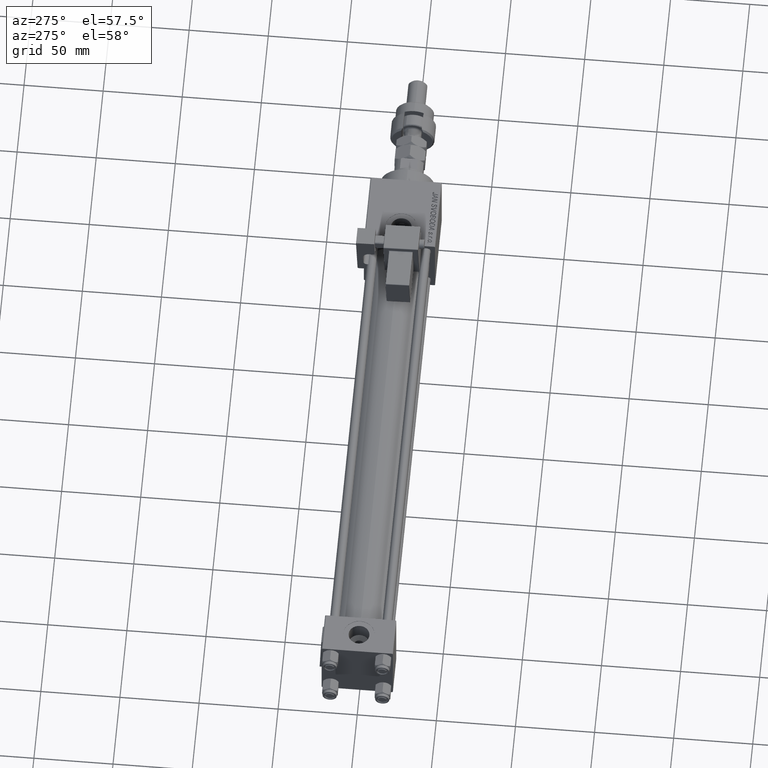
[diagram: clean part render]
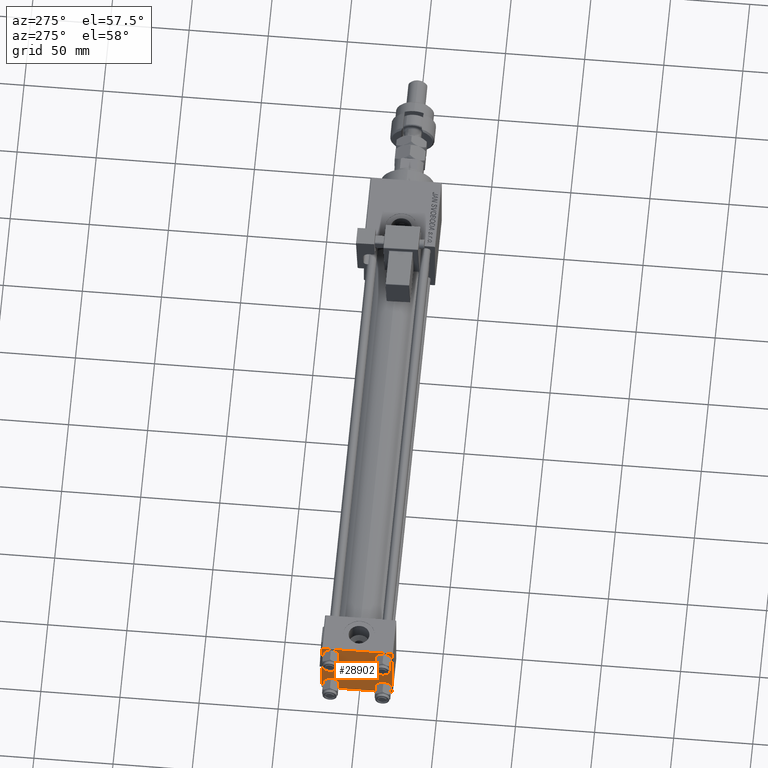
[diagram: same view with one face highlighted and labeled with its STEP entity id]
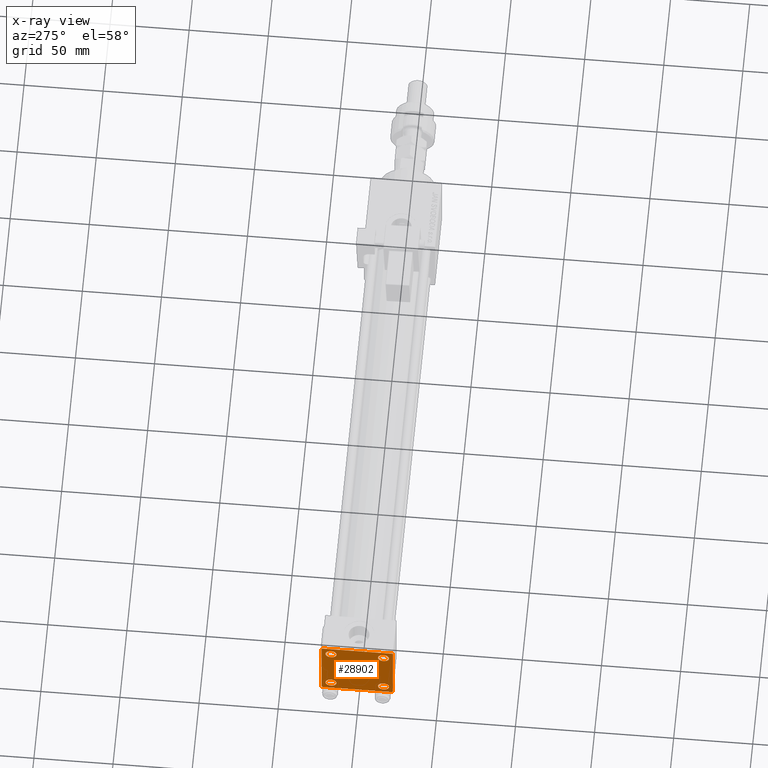
[diagram: x-ray of the same camera — body ghosted, the highlighted face saturated]
A machine part, auxiliary view. The second image highlights one B-rep face of the part: STEP entity #28902.
The next image is the same camera in x-ray: the body ghosted, the highlighted face saturated — about 0% of this face is hidden behind the body in this view.
In plain terms, the highlighted planar face has unit normal (-1, 0, 0).
Its self-contained STEP definition (entity closure, byte-faithful):
#661 = FACE_BOUND ( 'NONE', #5920, .T. ) ;
#960 = LINE ( 'NONE', #7245, #2127 ) ;
#2075 = VERTEX_POINT ( 'NONE', #18110 ) ;
#2127 = VECTOR ( 'NONE', #15679, 1000.000000000000114 ) ;
#2228 = EDGE_CURVE ( 'NONE', #36828, #42151, #960, .T. ) ;
#2404 = VERTEX_POINT ( 'NONE', #9248 ) ;
#2411 = LINE ( 'NONE', #37254, #27388 ) ;
#2545 = VECTOR ( 'NONE', #33610, 1000.000000000000000 ) ;
#2815 = VERTEX_POINT ( 'NONE', #21316 ) ;
#3095 = CARTESIAN_POINT ( 'NONE',  ( 0.000000000000000000, 22.25000000000014566, -22.24999999999984013 ) ) ;
#3123 = CARTESIAN_POINT ( 'NONE',  ( 0.000000000000000000, 22.50000000000000000, -22.49999999999999645 ) ) ;
#3498 = ORIENTED_EDGE ( 'NONE', *, *, #25501, .F. ) ;
#3872 = EDGE_CURVE ( 'NONE', #6333, #32556, #2411, .T. ) ;
#4617 = CIRCLE ( 'NONE', #17583, 3.499999999999996003 ) ;
#4856 = VERTEX_POINT ( 'NONE', #38120 ) ;
#5420 = EDGE_LOOP ( 'NONE', ( #15939, #20552 ) ) ;
#5920 = EDGE_LOOP ( 'NONE', ( #41941, #24996 ) ) ;
#6136 = DIRECTION ( 'NONE',  ( 0.000000000000000000, 0.000000000000000000, 1.000000000000000000 ) ) ;
#6333 = VERTEX_POINT ( 'NONE', #47660 ) ;
#6480 = VERTEX_POINT ( 'NONE', #43578 ) ;
#6580 = EDGE_LOOP ( 'NONE', ( #31332, #52851, #38014, #39703, #50849, #29797, #3498, #40917 ) ) ;
#7210 = VERTEX_POINT ( 'NONE', #10306 ) ;
#7245 = CARTESIAN_POINT ( 'NONE',  ( 0.000000000000000000, 22.24999999999999645, 22.24999999999999645 ) ) ;
#8524 = CARTESIAN_POINT ( 'NONE',  ( 0.000000000000000000, 16.59999999999999787, -20.10000000000000142 ) ) ;
#9188 = EDGE_CURVE ( 'NONE', #2075, #21569, #46127, .T. ) ;
#9248 = CARTESIAN_POINT ( 'NONE',  ( 0.000000000000000000, 21.99999999999999289, -22.49999999999999645 ) ) ;
#9793 = ORIENTED_EDGE ( 'NONE', *, *, #55710, .T. ) ;
#10306 = CARTESIAN_POINT ( 'NONE',  ( 0.000000000000000000, -16.59999999999999076, 20.10000000000000853 ) ) ;
#11042 = DIRECTION ( 'NONE',  ( 0.000000000000000000, 0.000000000000000000, 1.000000000000000000 ) ) ;
#11073 = AXIS2_PLACEMENT_3D ( 'NONE', #21551, #26485, #13121 ) ;
#11108 = CIRCLE ( 'NONE', #11073, 3.499999999999996003 ) ;
#11241 = DIRECTION ( 'NONE',  ( 0.000000000000000000, 0.000000000000000000, 1.000000000000000000 ) ) ;
#11612 = DIRECTION ( 'NONE',  ( 1.000000000000000000, -0.000000000000000000, 0.000000000000000000 ) ) ;
#12105 = LINE ( 'NONE', #3123, #2545 ) ;
#12339 = ORIENTED_EDGE ( 'NONE', *, *, #47516, .T. ) ;
#13027 = VECTOR ( 'NONE', #46523, 1000.000000000000000 ) ;
#13121 = DIRECTION ( 'NONE',  ( 0.000000000000000000, 0.000000000000000000, 1.000000000000000000 ) ) ;
#14945 = AXIS2_PLACEMENT_3D ( 'NONE', #54894, #29034, #41238 ) ;
#15519 = CARTESIAN_POINT ( 'NONE',  ( 0.000000000000000000, 16.59999999999999787, 20.10000000000000142 ) ) ;
#15665 = EDGE_CURVE ( 'NONE', #55095, #56339, #43467, .T. ) ;
#15679 = DIRECTION ( 'NONE',  ( 0.000000000000000000, 0.7071067811865474617, -0.7071067811865474617 ) ) ;
#15939 = ORIENTED_EDGE ( 'NONE', *, *, #46864, .T. ) ;
#16000 = CARTESIAN_POINT ( 'NONE',  ( 0.000000000000000000, 16.59999999999999787, 16.60000000000000497 ) ) ;
#17297 = LINE ( 'NONE', #3095, #26554 ) ;
#17583 = AXIS2_PLACEMENT_3D ( 'NONE', #20050, #11612, #11042 ) ;
#17747 = AXIS2_PLACEMENT_3D ( 'NONE', #16000, #46779, #6136 ) ;
#18110 = CARTESIAN_POINT ( 'NONE',  ( 0.000000000000000000, -16.59999999999999076, -13.10000000000001030 ) ) ;
#18171 = CARTESIAN_POINT ( 'NONE',  ( 0.000000000000000000, 22.50000000000000000, 22.50000000000000355 ) ) ;
#18197 = CARTESIAN_POINT ( 'NONE',  ( 0.000000000000000000, -16.59999999999999076, -20.10000000000000497 ) ) ;
#18260 = CARTESIAN_POINT ( 'NONE',  ( 0.000000000000000000, -16.59999999999999076, -16.60000000000000853 ) ) ;
#18654 = FACE_BOUND ( 'NONE', #53875, .T. ) ;
#18928 = AXIS2_PLACEMENT_3D ( 'NONE', #36367, #48890, #30860 ) ;
#19800 = EDGE_CURVE ( 'NONE', #2815, #32556, #29097, .T. ) ;
#20050 = CARTESIAN_POINT ( 'NONE',  ( 0.000000000000000000, 16.59999999999999787, -16.60000000000000497 ) ) ;
#20142 = AXIS2_PLACEMENT_3D ( 'NONE', #25274, #43271, #34551 ) ;
#20213 = LINE ( 'NONE', #29492, #37228 ) ;
#20552 = ORIENTED_EDGE ( 'NONE', *, *, #15665, .T. ) ;
#21079 = DIRECTION ( 'NONE',  ( -0.000000000000000000, -0.7071067811865426878, -0.7071067811865524577 ) ) ;
#21142 = EDGE_CURVE ( 'NONE', #53298, #39845, #39970, .T. ) ;
#21316 = CARTESIAN_POINT ( 'NONE',  ( 0.000000000000000000, -21.99999999999997158, -22.50000000000000711 ) ) ;
#21551 = CARTESIAN_POINT ( 'NONE',  ( 0.000000000000000000, -16.59999999999999076, 16.60000000000000853 ) ) ;
#21569 = VERTEX_POINT ( 'NONE', #18197 ) ;
#22308 = DIRECTION ( 'NONE',  ( 0.000000000000000000, 0.000000000000000000, 1.000000000000000000 ) ) ;
#24996 = ORIENTED_EDGE ( 'NONE', *, *, #45176, .T. ) ;
#25047 = AXIS2_PLACEMENT_3D ( 'NONE', #18260, #54251, #11241 ) ;
#25242 = CIRCLE ( 'NONE', #35480, 3.499999999999996003 ) ;
#25274 = CARTESIAN_POINT ( 'NONE',  ( 0.000000000000000000, -16.59999999999999076, -16.60000000000000853 ) ) ;
#25501 = EDGE_CURVE ( 'NONE', #36828, #33359, #40904, .T. ) ;
#26383 = DIRECTION ( 'NONE',  ( 1.000000000000000000, -0.000000000000000000, 0.000000000000000000 ) ) ;
#26485 = DIRECTION ( 'NONE',  ( 1.000000000000000000, -0.000000000000000000, 0.000000000000000000 ) ) ;
#26554 = VECTOR ( 'NONE', #21079, 1000.000000000000000 ) ;
#26679 = CARTESIAN_POINT ( 'NONE',  ( 0.000000000000000000, -16.59999999999999076, 16.60000000000000853 ) ) ;
#27388 = VECTOR ( 'NONE', #32321, 1000.000000000000000 ) ;
#27674 = CARTESIAN_POINT ( 'NONE',  ( 0.000000000000000000, -22.50000000000000000, -21.99999999999997158 ) ) ;
#28808 = CARTESIAN_POINT ( 'NONE',  ( 0.000000000000000000, -22.25000000000014566, -22.24999999999984013 ) ) ;
#28902 = ADVANCED_FACE ( 'NONE', ( #18654, #661, #35805, #49178, #53527 ), #57299, .T. ) ;
#29034 = DIRECTION ( 'NONE',  ( 1.000000000000000000, -0.000000000000000000, 0.000000000000000000 ) ) ;
#29097 = LINE ( 'NONE', #28808, #13027 ) ;
#29492 = CARTESIAN_POINT ( 'NONE',  ( -0.000000000000000000, -22.24999999999984013, 22.25000000000015277 ) ) ;
#29797 = ORIENTED_EDGE ( 'NONE', *, *, #51673, .T. ) ;
#30860 = DIRECTION ( 'NONE',  ( -0.000000000000000000, 0.000000000000000000, 1.000000000000000000 ) ) ;
#31192 = VECTOR ( 'NONE', #48376, 1000.000000000000000 ) ;
#31332 = ORIENTED_EDGE ( 'NONE', *, *, #33771, .T. ) ;
#32321 = DIRECTION ( 'NONE',  ( 0.000000000000000000, 0.000000000000000000, -1.000000000000000000 ) ) ;
#32556 = VERTEX_POINT ( 'NONE', #27674 ) ;
#33359 = VERTEX_POINT ( 'NONE', #37323 ) ;
#33610 = DIRECTION ( 'NONE',  ( 0.000000000000000000, -1.000000000000000000, -2.312964634635742957E-16 ) ) ;
#33741 = EDGE_CURVE ( 'NONE', #6480, #2404, #17297, .T. ) ;
#33771 = EDGE_CURVE ( 'NONE', #42151, #6480, #36160, .T. ) ;
#34551 = DIRECTION ( 'NONE',  ( 0.000000000000000000, 0.000000000000000000, 1.000000000000000000 ) ) ;
#35480 = AXIS2_PLACEMENT_3D ( 'NONE', #26679, #26383, #22308 ) ;
#35805 = FACE_BOUND ( 'NONE', #5420, .T. ) ;
#36160 = LINE ( 'NONE', #18171, #31192 ) ;
#36328 = VECTOR ( 'NONE', #40616, 1000.000000000000000 ) ;
#36367 = CARTESIAN_POINT ( 'NONE',  ( 0.000000000000000000, 0.000000000000000000, 0.000000000000000000 ) ) ;
#36828 = VERTEX_POINT ( 'NONE', #51181 ) ;
#37228 = VECTOR ( 'NONE', #47211, 999.9999999999998863 ) ;
#37254 = CARTESIAN_POINT ( 'NONE',  ( 0.000000000000000000, -22.50000000000000000, 22.50000000000000000 ) ) ;
#37323 = CARTESIAN_POINT ( 'NONE',  ( 0.000000000000000000, -21.99999999999997868, 22.50000000000000000 ) ) ;
#38014 = ORIENTED_EDGE ( 'NONE', *, *, #39306, .T. ) ;
#38120 = CARTESIAN_POINT ( 'NONE',  ( 0.000000000000000000, -16.59999999999999076, 13.10000000000001030 ) ) ;
#38224 = DIRECTION ( 'NONE',  ( 1.000000000000000000, -0.000000000000000000, 0.000000000000000000 ) ) ;
#38494 = EDGE_LOOP ( 'NONE', ( #51355, #48203 ) ) ;
#38814 = AXIS2_PLACEMENT_3D ( 'NONE', #56238, #38224, #47238 ) ;
#39306 = EDGE_CURVE ( 'NONE', #2404, #2815, #12105, .T. ) ;
#39703 = ORIENTED_EDGE ( 'NONE', *, *, #19800, .T. ) ;
#39845 = VERTEX_POINT ( 'NONE', #56106 ) ;
#39970 = CIRCLE ( 'NONE', #14945, 3.499999999999996003 ) ;
#40616 = DIRECTION ( 'NONE',  ( 0.000000000000000000, -1.000000000000000000, -7.709882115452476934E-17 ) ) ;
#40904 = LINE ( 'NONE', #49642, #36328 ) ;
#40917 = ORIENTED_EDGE ( 'NONE', *, *, #2228, .T. ) ;
#41238 = DIRECTION ( 'NONE',  ( 0.000000000000000000, 0.000000000000000000, 1.000000000000000000 ) ) ;
#41941 = ORIENTED_EDGE ( 'NONE', *, *, #9188, .T. ) ;
#42151 = VERTEX_POINT ( 'NONE', #53424 ) ;
#42775 = CIRCLE ( 'NONE', #17747, 3.499999999999996003 ) ;
#43271 = DIRECTION ( 'NONE',  ( 1.000000000000000000, -0.000000000000000000, 0.000000000000000000 ) ) ;
#43467 = CIRCLE ( 'NONE', #38814, 3.499999999999996003 ) ;
#43578 = CARTESIAN_POINT ( 'NONE',  ( 0.000000000000000000, 22.50000000000000000, -21.99999999999996803 ) ) ;
#45176 = EDGE_CURVE ( 'NONE', #21569, #2075, #47312, .T. ) ;
#46127 = CIRCLE ( 'NONE', #20142, 3.499999999999996003 ) ;
#46523 = DIRECTION ( 'NONE',  ( 0.000000000000000000, -0.7071067811865426878, 0.7071067811865524577 ) ) ;
#46779 = DIRECTION ( 'NONE',  ( 1.000000000000000000, -0.000000000000000000, 0.000000000000000000 ) ) ;
#46864 = EDGE_CURVE ( 'NONE', #56339, #55095, #4617, .T. ) ;
#47145 = CARTESIAN_POINT ( 'NONE',  ( 0.000000000000000000, 16.59999999999999787, -13.10000000000000675 ) ) ;
#47211 = DIRECTION ( 'NONE',  ( -0.000000000000000000, 0.7071067811865525687, 0.7071067811865425767 ) ) ;
#47238 = DIRECTION ( 'NONE',  ( 0.000000000000000000, 0.000000000000000000, 1.000000000000000000 ) ) ;
#47312 = CIRCLE ( 'NONE', #25047, 3.499999999999996003 ) ;
#47516 = EDGE_CURVE ( 'NONE', #4856, #7210, #11108, .T. ) ;
#47660 = CARTESIAN_POINT ( 'NONE',  ( 0.000000000000000000, -22.50000000000000000, 22.00000000000000000 ) ) ;
#48203 = ORIENTED_EDGE ( 'NONE', *, *, #51859, .T. ) ;
#48376 = DIRECTION ( 'NONE',  ( 0.000000000000000000, 0.000000000000000000, -1.000000000000000000 ) ) ;
#48890 = DIRECTION ( 'NONE',  ( -1.000000000000000000, 0.000000000000000000, -0.000000000000000000 ) ) ;
#49178 = FACE_BOUND ( 'NONE', #38494, .T. ) ;
#49642 = CARTESIAN_POINT ( 'NONE',  ( 0.000000000000000000, 22.50000000000000000, 22.50000000000000355 ) ) ;
#50849 = ORIENTED_EDGE ( 'NONE', *, *, #3872, .F. ) ;
#51181 = CARTESIAN_POINT ( 'NONE',  ( 0.000000000000000000, 21.99999999999999289, 22.50000000000000355 ) ) ;
#51355 = ORIENTED_EDGE ( 'NONE', *, *, #21142, .T. ) ;
#51673 = EDGE_CURVE ( 'NONE', #6333, #33359, #20213, .T. ) ;
#51859 = EDGE_CURVE ( 'NONE', #39845, #53298, #42775, .T. ) ;
#52851 = ORIENTED_EDGE ( 'NONE', *, *, #33741, .T. ) ;
#53298 = VERTEX_POINT ( 'NONE', #15519 ) ;
#53424 = CARTESIAN_POINT ( 'NONE',  ( 0.000000000000000000, 22.50000000000000000, 21.99999999999999645 ) ) ;
#53527 = FACE_OUTER_BOUND ( 'NONE', #6580, .T. ) ;
#53875 = EDGE_LOOP ( 'NONE', ( #9793, #12339 ) ) ;
#54251 = DIRECTION ( 'NONE',  ( 1.000000000000000000, -0.000000000000000000, 0.000000000000000000 ) ) ;
#54894 = CARTESIAN_POINT ( 'NONE',  ( 0.000000000000000000, 16.59999999999999787, 16.60000000000000497 ) ) ;
#55095 = VERTEX_POINT ( 'NONE', #8524 ) ;
#55710 = EDGE_CURVE ( 'NONE', #7210, #4856, #25242, .T. ) ;
#56106 = CARTESIAN_POINT ( 'NONE',  ( 0.000000000000000000, 16.59999999999999787, 13.10000000000000675 ) ) ;
#56238 = CARTESIAN_POINT ( 'NONE',  ( 0.000000000000000000, 16.59999999999999787, -16.60000000000000497 ) ) ;
#56339 = VERTEX_POINT ( 'NONE', #47145 ) ;
#57299 = PLANE ( 'NONE',  #18928 ) ;